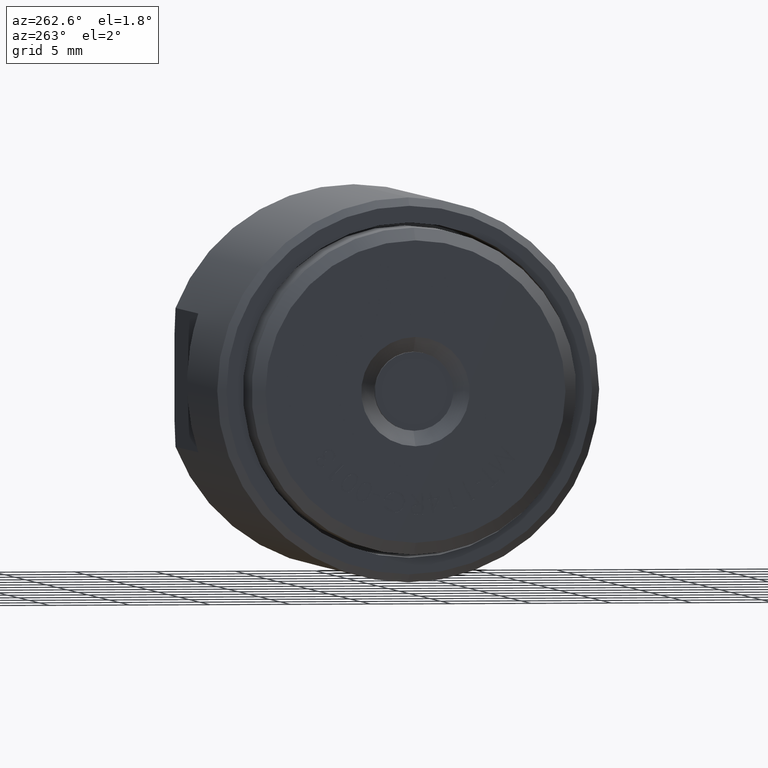
[diagram: clean part render]
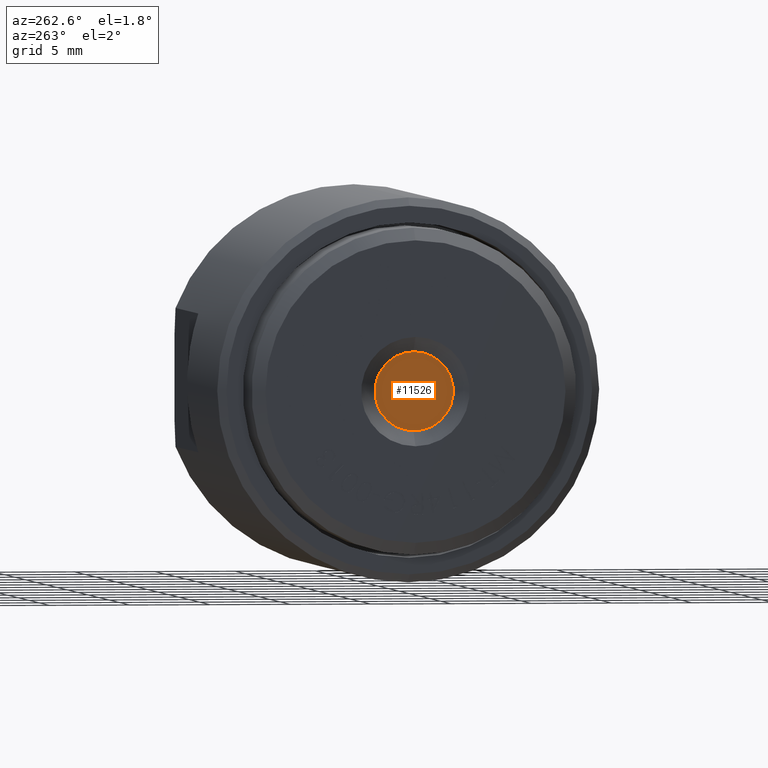
[diagram: same view with one face highlighted and labeled with its STEP entity id]
A machine part, auxiliary view. The second image highlights one B-rep face of the part: STEP entity #11526.
In plain terms, the highlighted planar face has unit normal (1, 0, 0).
Its self-contained STEP definition (entity closure, byte-faithful):
#789 = CIRCLE ( 'NONE', #10831, 0.09608246407405780787 ) ;
#1120 = VERTEX_POINT ( 'NONE', #9797 ) ;
#1589 = AXIS2_PLACEMENT_3D ( 'NONE', #3572, #4511, #1836 ) ;
#1836 = DIRECTION ( 'NONE',  ( 0.0000000000000000000, 0.0000000000000000000, -1.000000000000000000 ) ) ;
#2105 = CIRCLE ( 'NONE', #8366, 0.09608246407405780787 ) ;
#2284 = CARTESIAN_POINT ( 'NONE',  ( -0.2874999999999999778, 0.0000000000000000000, 0.0000000000000000000 ) ) ;
#2305 = EDGE_LOOP ( 'NONE', ( #10659, #3445 ) ) ;
#3185 = DIRECTION ( 'NONE',  ( -1.000000000000000000, -0.0000000000000000000, -0.0000000000000000000 ) ) ;
#3445 = ORIENTED_EDGE ( 'NONE', *, *, #6143, .T. ) ;
#3572 = CARTESIAN_POINT ( 'NONE',  ( -0.2875000000000000333, 0.09608246407405780787, 0.0000000000000000000 ) ) ;
#4511 = DIRECTION ( 'NONE',  ( 1.000000000000000000, 0.0000000000000000000, 0.0000000000000000000 ) ) ;
#4755 = DIRECTION ( 'NONE',  ( 0.0000000000000000000, 0.0000000000000000000, 1.000000000000000000 ) ) ;
#5760 = CARTESIAN_POINT ( 'NONE',  ( -0.2874999999999999778, 0.0000000000000000000, 0.0000000000000000000 ) ) ;
#6143 = EDGE_CURVE ( 'NONE', #1120, #9528, #2105, .T. ) ;
#7458 = EDGE_CURVE ( 'NONE', #9528, #1120, #789, .T. ) ;
#7875 = DIRECTION ( 'NONE',  ( 0.0000000000000000000, 0.0000000000000000000, 1.000000000000000000 ) ) ;
#8267 = DIRECTION ( 'NONE',  ( -1.000000000000000000, -0.0000000000000000000, -0.0000000000000000000 ) ) ;
#8366 = AXIS2_PLACEMENT_3D ( 'NONE', #2284, #3185, #7875 ) ;
#9066 = PLANE ( 'NONE',  #1589 ) ;
#9528 = VERTEX_POINT ( 'NONE', #10776 ) ;
#9797 = CARTESIAN_POINT ( 'NONE',  ( -0.2874999999999999778, 1.176670820824854605E-17, -0.09608246407405780787 ) ) ;
#9894 = FACE_OUTER_BOUND ( 'NONE', #2305, .T. ) ;
#10659 = ORIENTED_EDGE ( 'NONE', *, *, #7458, .T. ) ;
#10776 = CARTESIAN_POINT ( 'NONE',  ( -0.2874999999999999778, 0.0000000000000000000, 0.09608246407405780787 ) ) ;
#10831 = AXIS2_PLACEMENT_3D ( 'NONE', #5760, #8267, #4755 ) ;
#11526 = ADVANCED_FACE ( 'NONE', ( #9894 ), #9066, .F. ) ;